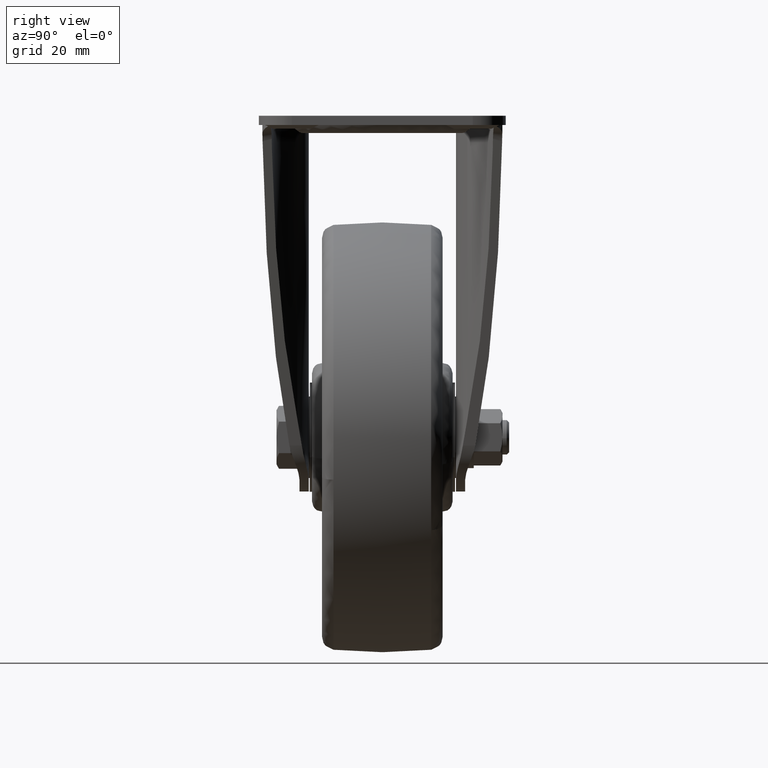
[diagram: clean part render]
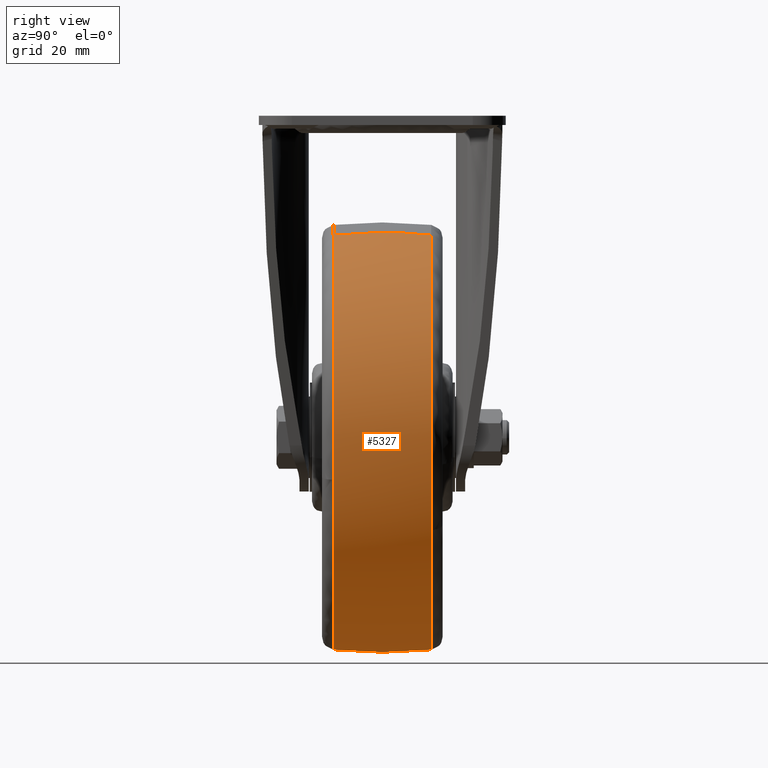
[diagram: same view with one face highlighted and labeled with its STEP entity id]
A machine part, right view. The second image highlights one B-rep face of the part: STEP entity #5327.
In plain terms, the highlighted face is a freeform B-spline surface patch.
Its self-contained STEP definition (entity closure, byte-faithful):
#5117=CARTESIAN_POINT('',(-22.877267490407551,-17.010270848716981,-182.408983472235090));
#5118=VERTEX_POINT('',#5117);
#5132=CARTESIAN_POINT('',(72.540999389948041,-17.010281723473462,-126.785008200361800));
#5133=VERTEX_POINT('',#5132);
#5134=CARTESIAN_POINT('',(-22.877267490407551,-17.010270848716981,-182.408983472235090));
#5135=CARTESIAN_POINT('',(47.531709821832699,-17.010270930438264,-205.286246944891050));
#5136=CARTESIAN_POINT('',(70.408974910862455,-17.010280629405120,-134.877267493430990));
#5137=CARTESIAN_POINT('',(71.704034601607077,-17.010281178454193,-130.891483755768260));
#5138=CARTESIAN_POINT('',(72.540999389948041,-17.010281723473462,-126.785008200361740));
#5146=(BOUNDED_CURVE()B_SPLINE_CURVE(2,(#5134,#5135,#5136,#5137,#5138),.UNSPECIFIED.,.F.,.U.)B_SPLINE_CURVE_WITH_KNOTS((3,2,3),(0.0,0.250000000000000,0.269555765023623),.UNSPECIFIED.)CURVE()GEOMETRIC_REPRESENTATION_ITEM()RATIONAL_B_SPLINE_CURVE((1.0,0.707106781186547,1.0,0.977088996143486,0.957762329949958))REPRESENTATION_ITEM(''));
#5147=EDGE_CURVE('',#5118,#5133,#5146,.T.);
#5203=CARTESIAN_POINT('',(22.877261118616499,-17.010290063593061,-41.591024249520792));
#5204=VERTEX_POINT('',#5203);
#5224=CARTESIAN_POINT('',(72.540999389948041,-17.010281723473469,-126.785008200361830));
#5225=CARTESIAN_POINT('',(85.741757104277582,-17.010290155121865,-62.016937127151799));
#5226=CARTESIAN_POINT('',(22.877261118616499,-17.010290063593061,-41.591024249520792));
#5234=(BOUNDED_CURVE()B_SPLINE_CURVE(2,(#5224,#5225,#5226),.UNSPECIFIED.,.F.,.U.)B_SPLINE_CURVE_WITH_KNOTS((3,3),(0.269555765023623,0.500000000000000),.UNSPECIFIED.)CURVE()GEOMETRIC_REPRESENTATION_ITEM()RATIONAL_B_SPLINE_CURVE((0.957762329949958,0.730017785043062,1.0))REPRESENTATION_ITEM(''));
#5235=EDGE_CURVE('',#5133,#5204,#5234,.T.);
#5240=CARTESIAN_POINT('',(-22.813685673871444,-18.725257351906230,-182.213298762535770));
#5241=CARTESIAN_POINT('',(-23.176278054714203,-9.399392002849959,-183.329243361949980));
#5242=CARTESIAN_POINT('',(-23.176278054714199,6.796565E-015,-183.329243361949890));
#5243=CARTESIAN_POINT('',(-23.176278054714206,9.399378137670903,-183.329243361949950));
#5244=CARTESIAN_POINT('',(-22.813686739417225,18.725229946079892,-182.213302041948370));
#5245=CARTESIAN_POINT('',(47.399610227641318,-18.725257351906222,-205.026981575384300));
#5246=CARTESIAN_POINT('',(48.152962446212747,-9.399392002849957,-206.505518555641170));
#5247=CARTESIAN_POINT('',(48.152962446212783,6.796565E-015,-206.505518555641170));
#5248=CARTESIAN_POINT('',(48.152962446212761,9.399378137670906,-206.505518555641150));
#5249=CARTESIAN_POINT('',(47.399612441508260,18.725229946079889,-205.026985920342700));
#5250=CARTESIAN_POINT('',(70.213293040489845,-18.725257351906230,-134.813685673871420));
#5251=CARTESIAN_POINT('',(71.329237639904022,-9.399392002849959,-135.176278054714260));
#5252=CARTESIAN_POINT('',(71.329237639904022,6.796565E-015,-135.176278054714200));
#5253=CARTESIAN_POINT('',(71.329237639904022,9.399378137670903,-135.176278054714230));
#5254=CARTESIAN_POINT('',(70.213296319902540,18.725229946079892,-134.813686739417250));
#5255=CARTESIAN_POINT('',(93.026975853338314,-18.725257351906222,-64.600389772358668));
#5256=CARTESIAN_POINT('',(94.505512833595247,-9.399392002849957,-63.847037553787239));
#5257=CARTESIAN_POINT('',(94.505512833595262,6.796565E-015,-63.847037553787246));
#5258=CARTESIAN_POINT('',(94.505512833595276,9.399378137670906,-63.847037553787253));
#5259=CARTESIAN_POINT('',(93.026980198296798,18.725229946079889,-64.600387558491761));
#5260=CARTESIAN_POINT('',(22.813679951825545,-18.725257351906230,-41.786706959510170));
#5261=CARTESIAN_POINT('',(23.176272332668308,-9.399392002849959,-40.670762360095992));
#5262=CARTESIAN_POINT('',(23.176272332668301,6.796565E-015,-40.670762360095992));
#5263=CARTESIAN_POINT('',(23.176272332668297,9.399378137670903,-40.670762360095985));
#5264=CARTESIAN_POINT('',(22.813681017371323,18.725229946079892,-41.786703680097482));
#5272=(BOUNDED_SURFACE()B_SPLINE_SURFACE(2,2,((#5240,#5245,#5250,#5255,#5260),(#5241,#5246,#5251,#5256,#5261),(#5242,#5247,#5252,#5257,#5262),(#5243,#5248,#5253,#5258,#5263),(#5244,#5249,#5254,#5259,#5264)),.UNSPECIFIED.,.F.,.F.,.U.)B_SPLINE_SURFACE_WITH_KNOTS((3,2,3),(3,2,3),(0.0,19.039661850094131,38.079296078289680),(0.0,124.264068711928500,248.528137423857090),.UNSPECIFIED.)GEOMETRIC_REPRESENTATION_ITEM()RATIONAL_B_SPLINE_SURFACE(((0.971044407266017,0.686632085211072,0.971044407266017,0.686632085211072,0.971044407266017),(0.983486865435778,0.695430231757540,0.983486865435778,0.695430231757540,0.983486865435778),(1.0,0.707106781186548,1.0,0.707106781186548,1.0),(0.983486889392302,0.695430248697361,0.983486889392302,0.695430248697361,0.983486889392302),(0.971044443367960,0.686632110739001,0.971044443367960,0.686632110739001,0.971044443367960)))REPRESENTATION_ITEM('')SURFACE());
#5273=CARTESIAN_POINT('',(-22.877267949718149,17.010257826203240,-182.408984885847700));
#5274=VERTEX_POINT('',#5273);
#5275=CARTESIAN_POINT('',(-22.877267490407551,-17.010270848716981,-182.408983472235090));
#5276=CARTESIAN_POINT('',(-23.026616988077411,-12.776005358901660,-182.868633961753200));
#5277=CARTESIAN_POINT('',(-23.276099051335819,-1.429727736288316,-183.636460799418190));
#5278=CARTESIAN_POINT('',(-23.126283420495358,9.953231276908241,-183.175375699517100));
#5279=CARTESIAN_POINT('',(-22.877267949718149,17.010257826203240,-182.408984885847700));
#5280=B_SPLINE_CURVE_WITH_KNOTS('',3,(#5275,#5276,#5277,#5278,#5279),.UNSPECIFIED.,.F.,.U.,(4,1,4),(-7.776151E-009,12.785291718173999,34.093888924978799),.UNSPECIFIED.);
#5281=EDGE_CURVE('',#5118,#5274,#5280,.T.);
#5282=ORIENTED_EDGE('',*,*,#5281,.T.);
#5283=CARTESIAN_POINT('',(66.585134627496728,17.010257837775900,-144.360674169429810));
#5284=VERTEX_POINT('',#5283);
#5285=CARTESIAN_POINT('',(-22.877267949718149,17.010257826203240,-182.408984885847700));
#5286=CARTESIAN_POINT('',(38.414721457901820,17.010257836379800,-202.323959719153520));
#5287=CARTESIAN_POINT('',(66.585134627496728,17.010257837775903,-144.360674169429810));
#5295=(BOUNDED_CURVE()B_SPLINE_CURVE(2,(#5285,#5286,#5287),.UNSPECIFIED.,.F.,.U.)B_SPLINE_CURVE_WITH_KNOTS((3,3),(0.0,0.226207519316748),.UNSPECIFIED.)CURVE()GEOMETRIC_REPRESENTATION_ITEM()RATIONAL_B_SPLINE_CURVE((1.0,0.734981406190046,0.949556401808593))REPRESENTATION_ITEM(''));
#5296=EDGE_CURVE('',#5274,#5284,#5295,.T.);
#5297=ORIENTED_EDGE('',*,*,#5296,.T.);
#5298=CARTESIAN_POINT('',(22.877262172440190,17.010257805835849,-41.591021006184967));
#5299=VERTEX_POINT('',#5298);
#5300=CARTESIAN_POINT('',(66.585134627496728,17.010257837775903,-144.360674169429810));
#5301=CARTESIAN_POINT('',(68.825299281915733,17.010257836464412,-139.751323340528330));
#5302=CARTESIAN_POINT('',(70.408975946190068,17.010257835054968,-134.877267411896410));
#5303=CARTESIAN_POINT('',(93.286239634345137,17.010257814694707,-64.468284804817884));
#5304=CARTESIAN_POINT('',(22.877262172440190,17.010257805835849,-41.591021006184967));
#5312=(BOUNDED_CURVE()B_SPLINE_CURVE(2,(#5300,#5301,#5302,#5303,#5304),.UNSPECIFIED.,.F.,.U.)B_SPLINE_CURVE_WITH_KNOTS((3,2,3),(0.226207519316748,0.250000000000000,0.500000000000000),.UNSPECIFIED.)CURVE()GEOMETRIC_REPRESENTATION_ITEM()RATIONAL_B_SPLINE_CURVE((0.949556401808593,0.972125374996502,1.0,0.707106781186547,1.0))REPRESENTATION_ITEM(''));
#5313=EDGE_CURVE('',#5284,#5299,#5312,.T.);
#5314=ORIENTED_EDGE('',*,*,#5313,.T.);
#5315=CARTESIAN_POINT('',(22.877261118616499,-17.010290063593061,-41.591024249520792));
#5316=CARTESIAN_POINT('',(23.026612994829978,-12.776022186574171,-41.131366439598160));
#5317=CARTESIAN_POINT('',(23.276084250530719,-1.429738934436362,-40.363572864175381));
#5318=CARTESIAN_POINT('',(23.126286100569139,9.953228067076944,-40.824604163463377));
#5319=CARTESIAN_POINT('',(22.877262172440190,17.010257805835849,-41.591021006184967));
#5320=B_SPLINE_CURVE_WITH_KNOTS('',3,(#5315,#5316,#5317,#5318,#5319),.UNSPECIFIED.,.F.,.U.,(4,1,4),(-7.777466E-009,12.785298964621900,34.093908244229908),.UNSPECIFIED.);
#5321=EDGE_CURVE('',#5204,#5299,#5320,.T.);
#5322=ORIENTED_EDGE('',*,*,#5321,.F.);
#5323=ORIENTED_EDGE('',*,*,#5235,.F.);
#5324=ORIENTED_EDGE('',*,*,#5147,.F.);
#5325=EDGE_LOOP('',(#5282,#5297,#5314,#5322,#5323,#5324));
#5326=FACE_OUTER_BOUND('',#5325,.T.);
#5327=ADVANCED_FACE('',(#5326),#5272,.T.);